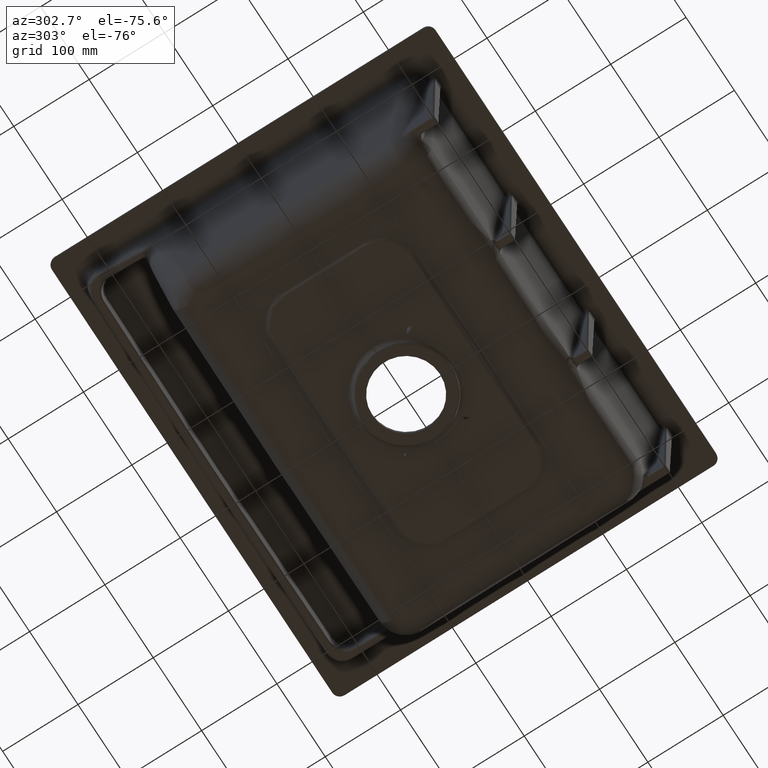
[diagram: clean part render]
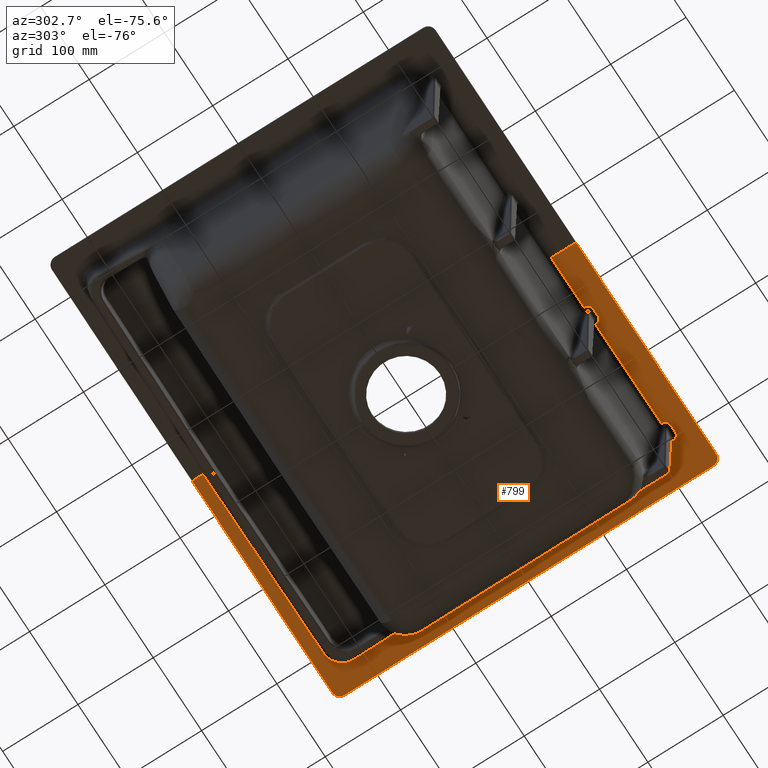
[diagram: same view with one face highlighted and labeled with its STEP entity id]
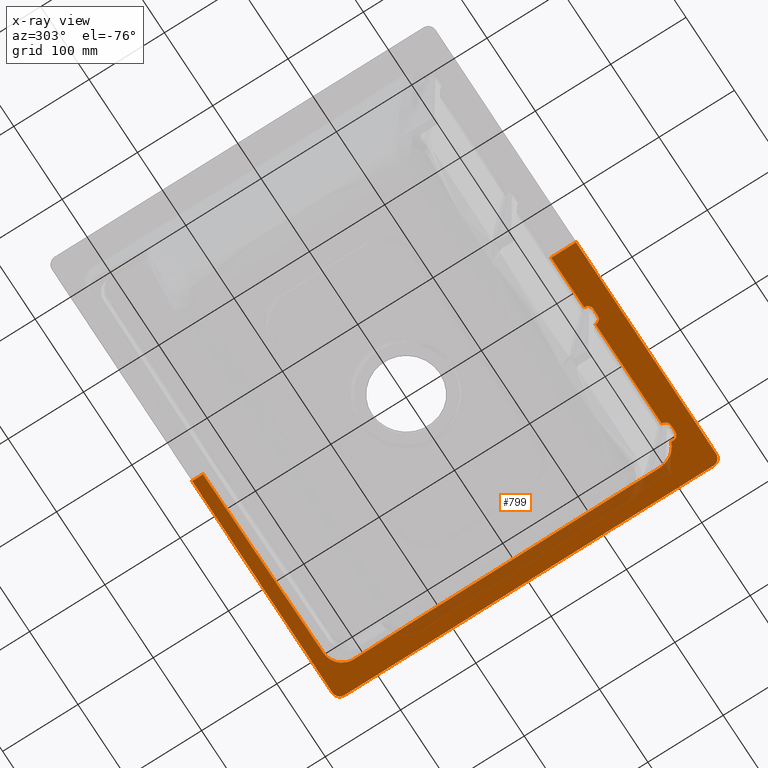
[diagram: x-ray of the same camera — body ghosted, the highlighted face saturated]
A machine part, auxiliary view. The second image highlights one B-rep face of the part: STEP entity #799.
The next image is the same camera in x-ray: the body ghosted, the highlighted face saturated — about 17% of this face is hidden behind the body in this view.
In plain terms, the highlighted planar face has unit normal (0, 0, -1).
Its self-contained STEP definition (entity closure, byte-faithful):
#62=ELLIPSE('',#5463,10.0274281381557,10.);
#63=ELLIPSE('',#5466,10.0274281381557,10.0000000000004);
#424=PLANE('',#5518);
#459=LINE('',#12139,#488);
#461=LINE('',#12145,#490);
#463=LINE('',#13149,#492);
#464=LINE('',#13372,#493);
#465=LINE('',#13610,#494);
#466=LINE('',#13611,#495);
#488=VECTOR('',#5725,1.);
#490=VECTOR('',#5733,1.);
#492=VECTOR('',#5791,1.);
#493=VECTOR('',#5808,1.);
#494=VECTOR('',#5843,1.);
#495=VECTOR('',#5844,1.);
#799=ADVANCED_FACE('',(#1258),#424,.T.);
#1258=FACE_OUTER_BOUND('',#1622,.T.);
#1622=EDGE_LOOP('',(#2560,#2561,#2562,#2563,#2564,#2565,#2566,#2567,#2568,
#2569,#2570,#2571,#2572,#2573,#2574,#2575,#2576,#2577,#2578,#2579,#2580,
#2581,#2582,#2583));
#2560=ORIENTED_EDGE('',*,*,#4445,.F.);
#2561=ORIENTED_EDGE('',*,*,#4330,.F.);
#2562=ORIENTED_EDGE('',*,*,#4332,.F.);
#2563=ORIENTED_EDGE('',*,*,#4333,.T.);
#2564=ORIENTED_EDGE('',*,*,#4336,.F.);
#2565=ORIENTED_EDGE('',*,*,#4337,.T.);
#2566=ORIENTED_EDGE('',*,*,#4446,.F.);
#2567=ORIENTED_EDGE('',*,*,#4046,.F.);
#2568=ORIENTED_EDGE('',*,*,#4443,.F.);
#2569=ORIENTED_EDGE('',*,*,#4440,.F.);
#2570=ORIENTED_EDGE('',*,*,#4437,.F.);
#2571=ORIENTED_EDGE('',*,*,#4434,.F.);
#2572=ORIENTED_EDGE('',*,*,#4429,.F.);
#2573=ORIENTED_EDGE('',*,*,#4426,.F.);
#2574=ORIENTED_EDGE('',*,*,#4415,.F.);
#2575=ORIENTED_EDGE('',*,*,#4409,.F.);
#2576=ORIENTED_EDGE('',*,*,#4403,.F.);
#2577=ORIENTED_EDGE('',*,*,#4397,.F.);
#2578=ORIENTED_EDGE('',*,*,#4392,.F.);
#2579=ORIENTED_EDGE('',*,*,#4399,.F.);
#2580=ORIENTED_EDGE('',*,*,#4405,.F.);
#2581=ORIENTED_EDGE('',*,*,#4411,.F.);
#2582=ORIENTED_EDGE('',*,*,#4417,.F.);
#2583=ORIENTED_EDGE('',*,*,#4422,.F.);
#3557=VERTEX_POINT('',#6471);
#3558=VERTEX_POINT('',#6484);
#3729=VERTEX_POINT('',#12136);
#3730=VERTEX_POINT('',#12138);
#3731=VERTEX_POINT('',#12142);
#3732=VERTEX_POINT('',#12146);
#3733=VERTEX_POINT('',#12158);
#3734=VERTEX_POINT('',#12165);
#3761=VERTEX_POINT('',#13143);
#3763=VERTEX_POINT('',#13148);
#3766=VERTEX_POINT('',#13157);
#3767=VERTEX_POINT('',#13191);
#3770=VERTEX_POINT('',#13241);
#3771=VERTEX_POINT('',#13268);
#3774=VERTEX_POINT('',#13292);
#3775=VERTEX_POINT('',#13329);
#3778=VERTEX_POINT('',#13369);
#3779=VERTEX_POINT('',#13377);
#3782=VERTEX_POINT('',#13447);
#3785=VERTEX_POINT('',#13471);
#3787=VERTEX_POINT('',#13504);
#3790=VERTEX_POINT('',#13512);
#3792=VERTEX_POINT('',#13545);
#3794=VERTEX_POINT('',#13568);
#4046=EDGE_CURVE('',#3557,#3558,#4897,.T.);
#4330=EDGE_CURVE('',#3730,#3729,#459,.T.);
#4332=EDGE_CURVE('',#3731,#3730,#62,.T.);
#4333=EDGE_CURVE('',#3731,#3732,#461,.T.);
#4336=EDGE_CURVE('',#3733,#3732,#63,.T.);
#4337=EDGE_CURVE('',#3733,#3734,#5096,.T.);
#4392=EDGE_CURVE('',#3763,#3761,#463,.T.);
#4397=EDGE_CURVE('',#3761,#3766,#5127,.T.);
#4399=EDGE_CURVE('',#3767,#3763,#5128,.T.);
#4403=EDGE_CURVE('',#3766,#3770,#5131,.T.);
#4405=EDGE_CURVE('',#3771,#3767,#5133,.T.);
#4409=EDGE_CURVE('',#3770,#3774,#5134,.T.);
#4411=EDGE_CURVE('',#3775,#3771,#5136,.T.);
#4415=EDGE_CURVE('',#3774,#3778,#464,.T.);
#4417=EDGE_CURVE('',#3779,#3775,#5139,.T.);
#4422=EDGE_CURVE('',#3782,#3779,#5141,.T.);
#4426=EDGE_CURVE('',#3778,#3785,#5144,.T.);
#4429=EDGE_CURVE('',#3785,#3787,#5145,.T.);
#4434=EDGE_CURVE('',#3787,#3790,#5147,.T.);
#4437=EDGE_CURVE('',#3790,#3792,#5149,.T.);
#4440=EDGE_CURVE('',#3792,#3794,#5150,.T.);
#4443=EDGE_CURVE('',#3794,#3557,#5152,.T.);
#4445=EDGE_CURVE('',#3729,#3782,#465,.T.);
#4446=EDGE_CURVE('',#3558,#3734,#466,.T.);
#4897=B_SPLINE_CURVE_WITH_KNOTS('',3,(#6472,#6473,#6474,#6475,#6476,#6477,
#6478,#6479,#6480,#6481,#6482,#6483),.UNSPECIFIED.,.F.,.F.,(4,1,1,1,1,1,
1,1,1,4),(0.,0.03125,0.0625,0.125,0.25,0.375,0.5,0.625,0.75,1.),
 .UNSPECIFIED.);
#5096=B_SPLINE_CURVE_WITH_KNOTS('',3,(#12161,#12162,#12163,#12164),
 .UNSPECIFIED.,.F.,.F.,(4,4),(0.,1.),.UNSPECIFIED.);
#5127=B_SPLINE_CURVE_WITH_KNOTS('',3,(#13164,#13165,#13166,#13167,#13168,
#13169),.UNSPECIFIED.,.F.,.F.,(4,2,4),(0.,0.499999999999997,1.),
 .UNSPECIFIED.);
#5128=B_SPLINE_CURVE_WITH_KNOTS('',3,(#13193,#13194,#13195,#13196,#13197,
#13198,#13199,#13200,#13201,#13202),.UNSPECIFIED.,.F.,.F.,(4,2,2,2,4),(0.,
0.25,0.5,0.75,1.),.UNSPECIFIED.);
#5131=B_SPLINE_CURVE_WITH_KNOTS('',3,(#13246,#13247,#13248,#13249),
 .UNSPECIFIED.,.F.,.F.,(4,4),(0.,1.),.UNSPECIFIED.);
#5133=B_SPLINE_CURVE_WITH_KNOTS('',3,(#13270,#13271,#13272,#13273),
 .UNSPECIFIED.,.F.,.F.,(4,4),(0.,1.),.UNSPECIFIED.);
#5134=B_SPLINE_CURVE_WITH_KNOTS('',3,(#13299,#13300,#13301,#13302,#13303,
#13304),.UNSPECIFIED.,.F.,.F.,(4,2,4),(0.,0.5,1.),.UNSPECIFIED.);
#5136=B_SPLINE_CURVE_WITH_KNOTS('',3,(#13331,#13332,#13333,#13334),
 .UNSPECIFIED.,.F.,.F.,(4,4),(0.,1.),.UNSPECIFIED.);
#5139=B_SPLINE_CURVE_WITH_KNOTS('',3,(#13379,#13380,#13381,#13382,#13383,
#13384,#13385,#13386,#13387,#13388),.UNSPECIFIED.,.F.,.F.,(4,2,2,2,4),(0.,
0.250000000000001,0.500000000000001,0.750000000000002,1.),.UNSPECIFIED.);
#5141=B_SPLINE_CURVE_WITH_KNOTS('',3,(#13449,#13450,#13451,#13452),
 .UNSPECIFIED.,.F.,.F.,(4,4),(0.,1.),.UNSPECIFIED.);
#5144=B_SPLINE_CURVE_WITH_KNOTS('',3,(#13480,#13481,#13482,#13483),
 .UNSPECIFIED.,.F.,.F.,(4,4),(0.,1.),.UNSPECIFIED.);
#5145=B_SPLINE_CURVE_WITH_KNOTS('',3,(#13500,#13501,#13502,#13503),
 .UNSPECIFIED.,.F.,.F.,(4,4),(0.,1.),.UNSPECIFIED.);
#5147=B_SPLINE_CURVE_WITH_KNOTS('',3,(#13519,#13520,#13521,#13522,#13523,
#13524),.UNSPECIFIED.,.F.,.F.,(4,2,4),(0.,0.5,1.),.UNSPECIFIED.);
#5149=B_SPLINE_CURVE_WITH_KNOTS('',3,(#13550,#13551,#13552,#13553),
 .UNSPECIFIED.,.F.,.F.,(4,4),(0.,1.),.UNSPECIFIED.);
#5150=B_SPLINE_CURVE_WITH_KNOTS('',3,(#13575,#13576,#13577,#13578,#13579,
#13580),.UNSPECIFIED.,.F.,.F.,(4,2,4),(0.,0.5,1.),.UNSPECIFIED.);
#5152=B_SPLINE_CURVE_WITH_KNOTS('',3,(#13603,#13604,#13605,#13606),
 .UNSPECIFIED.,.F.,.F.,(4,4),(0.,1.),.UNSPECIFIED.);
#5463=AXIS2_PLACEMENT_3D('',#12143,#5729,#5730);
#5466=AXIS2_PLACEMENT_3D('',#12159,#5736,#5737);
#5518=AXIS2_PLACEMENT_3D('',#13612,#5845,#5846);
#5725=DIRECTION('',(-1.,0.,0.));
#5729=DIRECTION('',(0.,0.,1.));
#5730=DIRECTION('',(-0.707106781186548,-0.707106781186548,0.));
#5733=DIRECTION('',(0.,-1.,0.));
#5736=DIRECTION('',(0.,0.,1.));
#5737=DIRECTION('',(0.70710678119122,-0.707106781181875,0.));
#5791=DIRECTION('',(0.,-1.,0.));
#5808=DIRECTION('',(0.,1.,0.));
#5843=DIRECTION('',(0.,-1.,0.));
#5844=DIRECTION('',(0.,-1.,0.));
#5845=DIRECTION('',(0.,0.,-1.));
#5846=DIRECTION('',(-1.,0.,0.));
#6471=CARTESIAN_POINT('',(68.1095465339848,-192.795495998928,-10.0004424572828));
#6472=CARTESIAN_POINT('',(68.1095389440115,-192.795314153622,-10.0008849348341));
#6473=CARTESIAN_POINT('',(67.4001728218313,-192.794622922316,-9.98843281667267));
#6474=CARTESIAN_POINT('',(65.9810840080782,-192.791080496831,-10.005881498878));
#6475=CARTESIAN_POINT('',(63.1432609668613,-192.785154853081,-9.99242064283805));
#6476=CARTESIAN_POINT('',(58.1769000172985,-192.775294490453,-10.0010752921248));
#6477=CARTESIAN_POINT('',(51.0821786870773,-192.76188959088,-10.0027880817503));
#6478=CARTESIAN_POINT('',(42.5684799048036,-192.745485917775,-10.0013468379436));
#6479=CARTESIAN_POINT('',(34.0547869646864,-192.728939383876,-9.99905002120074));
#6480=CARTESIAN_POINT('',(25.5410896888845,-192.715464186904,-9.99937093132342));
#6481=CARTESIAN_POINT('',(14.1894926738424,-192.697108072787,-10.0002559876789));
#6482=CARTESIAN_POINT('',(5.67580593519775,-192.672787080404,-10.));
#6483=CARTESIAN_POINT('',(-1.63069557856943E-12,-192.672787080404,-10.));
#6484=CARTESIAN_POINT('',(-8.11543118939975E-13,-192.672775403693,-10.));
#12136=CARTESIAN_POINT('',(4.13590306276514E-22,284.291731327924,-10.));
#12138=CARTESIAN_POINT('',(289.908889093888,284.291731327924,-10.));
#12139=CARTESIAN_POINT('',(161.894993198295,284.291731327924,-10.));
#12142=CARTESIAN_POINT('',(299.895184448263,274.305439737208,-10.0000001303037));
#12143=CARTESIAN_POINT('',(289.881460981455,274.278007867945,-10.));
#12145=CARTESIAN_POINT('',(299.895184441434,29.3965468806914,-10.));
#12146=CARTESIAN_POINT('',(299.895184441433,-215.512342207663,-9.99999999998847));
#12158=CARTESIAN_POINT('',(289.908889080936,-225.49863754267,-9.99999975034024));
#12159=CARTESIAN_POINT('',(289.881460981454,-215.48491409523,-10.));
#12161=CARTESIAN_POINT('',(289.908889094021,-225.498637560737,-10.));
#12162=CARTESIAN_POINT('',(193.272592729348,-225.498637560737,-10.));
#12163=CARTESIAN_POINT('',(96.6362963646738,-225.498637560737,-10.));
#12164=CARTESIAN_POINT('',(1.73472347597681E-15,-225.498637560737,-10.));
#12165=CARTESIAN_POINT('',(-8.68845922370994E-16,-225.498637556748,-10.));
#13143=CARTESIAN_POINT('',(251.137396074365,-193.89400159666,-10.));
#13148=CARTESIAN_POINT('',(251.137396074365,-190.928016937892,-10.));
#13149=CARTESIAN_POINT('',(251.137396074365,-192.411009267276,-10.));
#13157=CARTESIAN_POINT('',(244.107186534388,-200.893673758572,-10.));
#13164=CARTESIAN_POINT('',(251.137396074365,-193.89400159666,-10.));
#13165=CARTESIAN_POINT('',(251.137395774195,-195.747851054385,-10.));
#13166=CARTESIAN_POINT('',(250.372310116333,-197.565154436289,-10.));
#13167=CARTESIAN_POINT('',(247.777165946663,-200.147223138124,-10.));
#13168=CARTESIAN_POINT('',(245.961019265606,-200.901811091508,-10.));
#13169=CARTESIAN_POINT('',(244.107186534388,-200.893673758572,-10.));
#13191=CARTESIAN_POINT('',(269.38679702231,-163.226329715868,-10.));
#13193=CARTESIAN_POINT('',(269.38679702231,-163.226329715868,-10.));
#13194=CARTESIAN_POINT('',(269.402930929925,-166.181529284543,-10.));
#13195=CARTESIAN_POINT('',(268.99704333239,-169.067836871639,-10.));
#13196=CARTESIAN_POINT('',(267.33555275632,-174.701742108875,-9.99999999999999));
#13197=CARTESIAN_POINT('',(266.063209213881,-177.42636423556,-10.));
#13198=CARTESIAN_POINT('',(262.837687145497,-182.305633279269,-10.));
#13199=CARTESIAN_POINT('',(260.869296714415,-184.505029482309,-10.));
#13200=CARTESIAN_POINT('',(256.34953508293,-188.26016144267,-10.));
#13201=CARTESIAN_POINT('',(253.861415485036,-189.77931210704,-10.));
#13202=CARTESIAN_POINT('',(251.137396074365,-190.928016937888,-10.));
#13241=CARTESIAN_POINT('',(234.715769537192,-200.852885212516,-10.));
#13246=CARTESIAN_POINT('',(244.107186534388,-200.893673758572,-10.));
#13247=CARTESIAN_POINT('',(240.976714834723,-200.879932664224,-10.));
#13248=CARTESIAN_POINT('',(237.846242495616,-200.866336482193,-10.));
#13249=CARTESIAN_POINT('',(234.715769537192,-200.852885212516,-10.));
#13268=CARTESIAN_POINT('',(269.956498835161,164.066656093869,-10.));
#13270=CARTESIAN_POINT('',(269.956498835161,164.066656093869,-10.));
#13271=CARTESIAN_POINT('',(269.000926693744,54.9719001377043,-10.));
#13272=CARTESIAN_POINT('',(268.811021413019,-54.1289080078152,-10.));
#13273=CARTESIAN_POINT('',(269.386797737863,-163.226329711962,-10.));
#13292=CARTESIAN_POINT('',(227.746358960821,-193.853210668212,-10.));
#13299=CARTESIAN_POINT('',(234.715769537192,-200.852885212516,-10.));
#13300=CARTESIAN_POINT('',(232.872192646793,-200.844963582061,-10.));
#13301=CARTESIAN_POINT('',(231.068195411202,-200.081094417682,-10.));
#13302=CARTESIAN_POINT('',(228.499773150112,-197.499631150042,-10.));
#13303=CARTESIAN_POINT('',(227.746358960821,-195.696801924501,-10.));
#13304=CARTESIAN_POINT('',(227.746358960821,-193.853210668212,-10.));
#13329=CARTESIAN_POINT('',(270.774331671825,242.79443858215,-10.));
#13331=CARTESIAN_POINT('',(270.774331671825,242.79443858215,-10.));
#13332=CARTESIAN_POINT('',(270.463379980036,216.552271103826,-10.));
#13333=CARTESIAN_POINT('',(270.188113942422,190.309643754194,-10.));
#13334=CARTESIAN_POINT('',(269.957209726347,164.0666498671,-10.));
#13369=CARTESIAN_POINT('',(227.74635896082,-193.226087563218,-10.));
#13372=CARTESIAN_POINT('',(227.746358960821,-193.539649115715,-10.));
#13377=CARTESIAN_POINT('',(246.084059581058,267.959744138025,-9.99999999999999));
#13379=CARTESIAN_POINT('',(246.084059581058,267.959744138025,-9.99999999999999));
#13380=CARTESIAN_POINT('',(249.377121607547,267.924531286088,-9.99999999999999));
#13381=CARTESIAN_POINT('',(252.594662026424,267.253333992268,-10.));
#13382=CARTESIAN_POINT('',(258.632314930154,264.695402769484,-10.));
#13383=CARTESIAN_POINT('',(261.386969874272,262.817086618209,-10.));
#13384=CARTESIAN_POINT('',(265.944404919952,258.17666764542,-10.));
#13385=CARTESIAN_POINT('',(267.768876559502,255.392143169656,-10.));
#13386=CARTESIAN_POINT('',(270.203783947445,249.328085773622,-10.));
#13387=CARTESIAN_POINT('',(270.813267805037,246.087698681325,-9.99999999999999));
#13388=CARTESIAN_POINT('',(270.774331663175,242.794438582252,-9.99999999999999));
#13447=CARTESIAN_POINT('',(3.24319355164722E-8,269.846816152976,-10.));
#13449=CARTESIAN_POINT('',(-1.20373693786124E-16,269.846816152976,-10.));
#13450=CARTESIAN_POINT('',(82.0297169387721,269.459964458864,-10.));
#13451=CARTESIAN_POINT('',(164.058056799527,268.830940635084,-10.));
#13452=CARTESIAN_POINT('',(246.084059581759,267.959744203568,-10.));
#13471=CARTESIAN_POINT('',(91.5013874184954,-192.846268716566,-10.));
#13480=CARTESIAN_POINT('',(227.74635896082,-193.226087563218,-10.));
#13481=CARTESIAN_POINT('',(182.331442208917,-193.075257289778,-10.));
#13482=CARTESIAN_POINT('',(136.916438542622,-192.948651953777,-10.));
#13483=CARTESIAN_POINT('',(91.5013867312877,-192.846268715017,-10.));
#13500=CARTESIAN_POINT('',(91.5013873142306,-192.846268716331,-10.));
#13501=CARTESIAN_POINT('',(91.5013873142306,-193.000829425629,-10.));
#13502=CARTESIAN_POINT('',(91.5013873142306,-193.155390134926,-10.));
#13503=CARTESIAN_POINT('',(91.5013873142306,-193.309950844224,-10.));
#13504=CARTESIAN_POINT('',(91.5013873142306,-193.309950844224,-10.));
#13512=CARTESIAN_POINT('',(84.4824109540187,-200.309668379568,-10.));
#13519=CARTESIAN_POINT('',(91.5013873142306,-193.309950844224,-10.));
#13520=CARTESIAN_POINT('',(91.5013873142306,-195.161904778106,-10.));
#13521=CARTESIAN_POINT('',(90.7379781034691,-196.977363697139,-10.));
#13522=CARTESIAN_POINT('',(88.1474416351502,-199.558990259563,-10.));
#13523=CARTESIAN_POINT('',(86.3343588657276,-200.314824950041,-10.));
#13524=CARTESIAN_POINT('',(84.4824109540187,-200.309668379568,-10.));
#13545=CARTESIAN_POINT('',(75.0901999932965,-200.283951482608,-10.));
#13550=CARTESIAN_POINT('',(84.4824109540187,-200.309668379568,-10.));
#13551=CARTESIAN_POINT('',(81.3516743673148,-200.300951145278,-10.));
#13552=CARTESIAN_POINT('',(78.2209373736977,-200.292378846282,-10.));
#13553=CARTESIAN_POINT('',(75.0901999932965,-200.283951482608,-10.));
#13568=CARTESIAN_POINT('',(68.1095541236104,-193.28423386515,-10.));
#13575=CARTESIAN_POINT('',(75.0901999932965,-200.283951482608,-10.));
#13576=CARTESIAN_POINT('',(73.2447173357525,-200.278983785985,-10.));
#13577=CARTESIAN_POINT('',(71.4376451107075,-199.516331440409,-10.));
#13578=CARTESIAN_POINT('',(68.8646356145465,-196.934400999577,-10.));
#13579=CARTESIAN_POINT('',(68.1095541236105,-195.12972053809,-10.));
#13580=CARTESIAN_POINT('',(68.1095541236105,-193.28423386515,-10.));
#13603=CARTESIAN_POINT('',(68.1095541236104,-193.28423386515,-10.));
#13604=CARTESIAN_POINT('',(68.1095541236104,-193.121381378681,-10.));
#13605=CARTESIAN_POINT('',(68.1095541236105,-192.958528892212,-10.));
#13606=CARTESIAN_POINT('',(68.1095541236105,-192.795676405743,-10.));
#13610=CARTESIAN_POINT('',(0.,29.3965468806914,-10.));
#13611=CARTESIAN_POINT('',(0.,29.3965468806914,-10.));
#13612=CARTESIAN_POINT('',(299.895184441434,-225.498637560737,-10.));